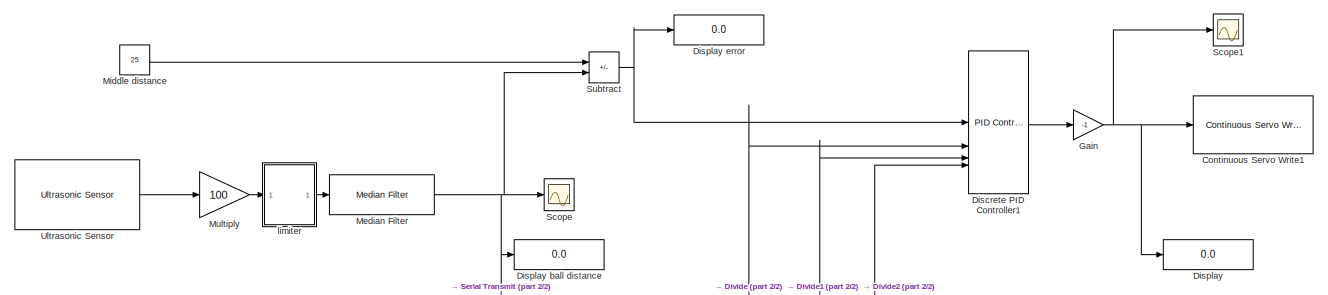
[diagram: root canvas - part 1/2, full width, top band]
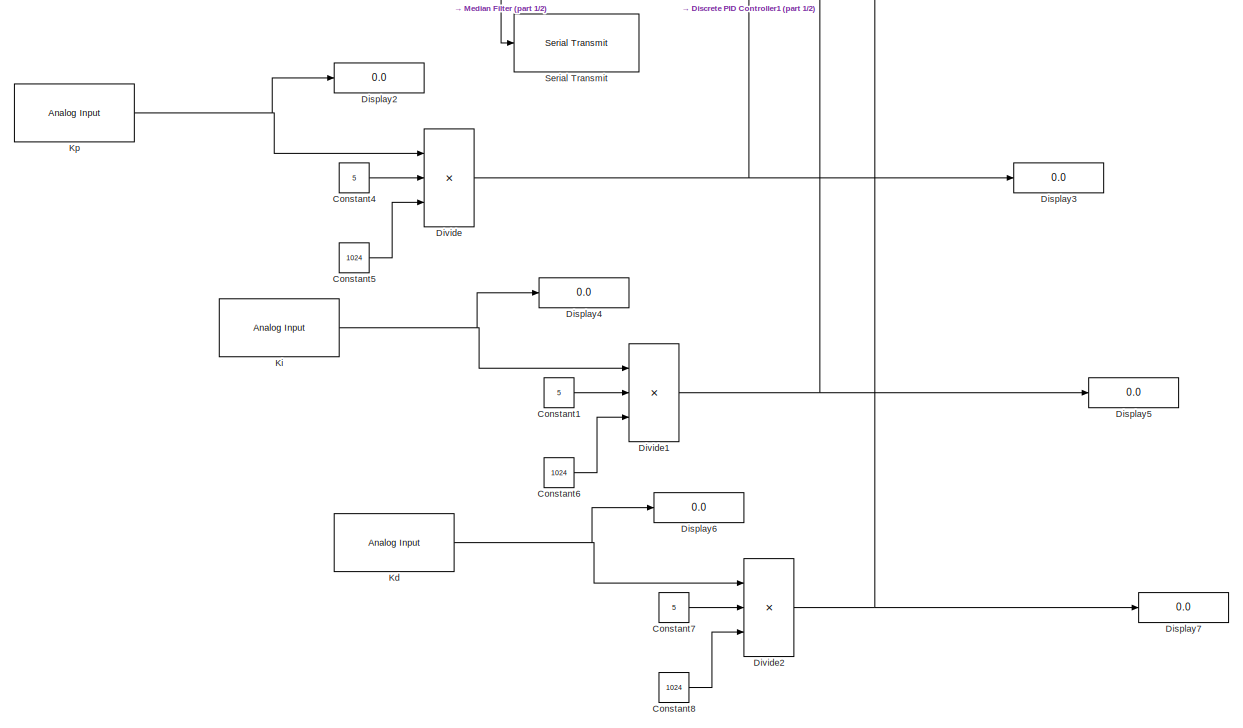
[diagram: root canvas - part 2/2, full width, middle band]
MODEL slx_cf93c92997fc
KIND model
CONFIG AbsTol = auto
CONFIG EnableMultiTasking = on
CONFIG FixedStep = 0.001
CONFIG MaxStep = auto
CONFIG MinStep = auto
CONFIG RelTol = 1e-3
CONFIG SampleTimeConstraint = Unconstrained
CONFIG SolverName = FixedStepAuto
CONFIG StartTime = 0.0
CONFIG StopTime = inf
BLOCK [Constant] Constant1
  Value = 5
BLOCK [Constant] Constant4
  Value = 5
BLOCK [Constant] Constant5
  Value = 1024
BLOCK [Constant] Constant6
  Value = 1024
BLOCK [Constant] Constant7
  Value = 5
BLOCK [Constant] Constant8
  Value = 1024
BLOCK [Reference] Continuous Servo Write1  REF=arduinolib/Continuous Servo Write
  SourceBlock = arduinolib/Continuous Servo Write
  SourceType = Arduino Continuous Servo Write
BLOCK [Reference] Discrete PID Controller1  REF=slpidlib/PID Controller
  SourceBlock = slpidlib/PID Controller
  SourceType = PID 1dof
BLOCK [Display] Display
  Decimation = 1
BLOCK [Display] Display ball distance
  Decimation = 1
BLOCK [Display] Display error 
  Decimation = 1
BLOCK [Display] Display2
  Decimation = 1
BLOCK [Display] Display3
  Decimation = 1
BLOCK [Display] Display4
  Decimation = 1
BLOCK [Display] Display5
  Decimation = 1
BLOCK [Display] Display6
  Decimation = 1
BLOCK [Display] Display7
  Decimation = 1
BLOCK [Product] Divide
  Inputs = **/
  RndMeth = Zero
  SaturateOnIntegerOverflow = on
BLOCK [Product] Divide1
  Inputs = **/
  RndMeth = Zero
  SaturateOnIntegerOverflow = on
BLOCK [Product] Divide2
  Inputs = **/
  RndMeth = Zero
  SaturateOnIntegerOverflow = on
BLOCK [Gain] Gain
  Gain = -1
BLOCK [Reference] Kd  REF=arduinolib/Analog Input
  SourceBlock = arduinolib/Analog Input
  SourceType = Arduino Analog Input
BLOCK [Reference] Ki  REF=arduinolib/Analog Input
  SourceBlock = arduinolib/Analog Input
  SourceType = Arduino Analog Input
BLOCK [Reference] Kp  REF=arduinolib/Analog Input
  SourceBlock = arduinolib/Analog Input
  SourceType = Arduino Analog Input
BLOCK [Reference] Median Filter  REF=dspstat3/Median
Filter
  LibrarySourceBlock = dspfdesign/Median\nFilter
  SourceBlock = dspstat3/Median\nFilter
  SourceType = dsp.simulink.MedianFilter
BLOCK [Constant] Middle distance
  Value = 25
BLOCK [Gain] Multiply
  Gain = 100
BLOCK [Scope] Scope
  Floating = off
  NumInputPorts = 1
  ScopeSpecificationString = Simulink.scopes.TimeScopeBlockCfg('CurrentConfiguration', extmgr.ConfigurationSet(extmgr.Configuration('Core','General UI',true),extmgr.Configuration('Core','Source UI',true),extmgr.Configuration('Sources','WiredSimulink',true),extmgr.Configuration('Visuals','Time Domain',true,'SerializedDisplays',{struct('MinYLimReal','-106.21424','MaxYLimReal','1342.83213','YLabelReal','','MinYLimMag',' 0.00000'...<+1456ch>
BLOCK [Scope] Scope1
  Floating = off
  NumInputPorts = 1
  ScopeSpecificationString = Simulink.scopes.TimeScopeBlockCfg('CurrentConfiguration', extmgr.ConfigurationSet(extmgr.Configuration('Core','General UI',true),extmgr.Configuration('Core','Source UI',true),extmgr.Configuration('Sources','WiredSimulink',true,'DataLoggingVariableName','ScopeData1'),extmgr.Configuration('Visuals','Time Domain',true,'SerializedDisplays',{struct('MinYLimReal','-112.5','MaxYLimReal','112.5','YLabelRe...<+1541ch>
BLOCK [Reference] Serial Transmit  REF=arduinolib/Serial Transmit
  Commented = on
  SourceBlock = arduinolib/Serial Transmit
  SourceType = Arduino Serial Transmit
BLOCK [Sum] Subtract
  IconShape = rectangular
  Inputs = +-
BLOCK [Reference] Ultrasonic Sensor  REF=arduinosensorlib/Ultrasonic Sensor
  SourceBlock = arduinosensorlib/Ultrasonic Sensor
  SourceType = Arduino Ultrasonic Sensor
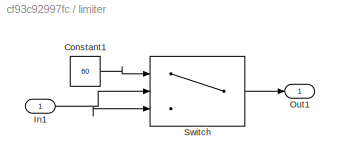
BLOCK [SubSystem] limiter
BLOCK [Constant] limiter/Constant1
  Value = 60
BLOCK [Inport] limiter/In1
BLOCK [Outport] limiter/Out1
BLOCK [Switch] limiter/Switch
  InputSameDT = off
  SaturateOnIntegerOverflow = off
  Threshold = 60
LINE Constant1:1 -> Divide1:2
LINE Constant4:1 -> Divide:2
LINE Constant5:1 -> Divide:3
LINE Constant6:1 -> Divide1:3
LINE Constant7:1 -> Divide2:2
LINE Constant8:1 -> Divide2:3
LINE Discrete PID Controller1:1 -> Gain:1
NET Divide1:1 -> Discrete PID Controller1:3, Display5:1
NET Divide2:1 -> Discrete PID Controller1:4, Display7:1
NET Divide:1 -> Discrete PID Controller1:2, Display3:1
NET Gain:1 -> Continuous Servo Write1:1, Display:1, Scope1:1
NET Kd:1 -> Display6:1, Divide2:1
NET Ki:1 -> Display4:1, Divide1:1
NET Kp:1 -> Display2:1, Divide:1
NET Median Filter:1 -> Display ball distance:1, Scope:1, Serial Transmit:1, Subtract:2
LINE Middle distance:1 -> Subtract:1
LINE Multiply:1 -> limiter:1
NET Subtract:1 -> Discrete PID Controller1:1, Display error :1
LINE Ultrasonic Sensor:1 -> Multiply:1
LINE limiter/Constant1:1 -> limiter/Switch:1
NET limiter/In1:1 -> limiter/Switch:2, limiter/Switch:3
LINE limiter/Switch:1 -> limiter/Out1:1
LINE limiter:1 -> Median Filter:1
note: NET lines group one-source signal fan-out (src -> all destinations, sorted); 1:1 wires keep LINE
